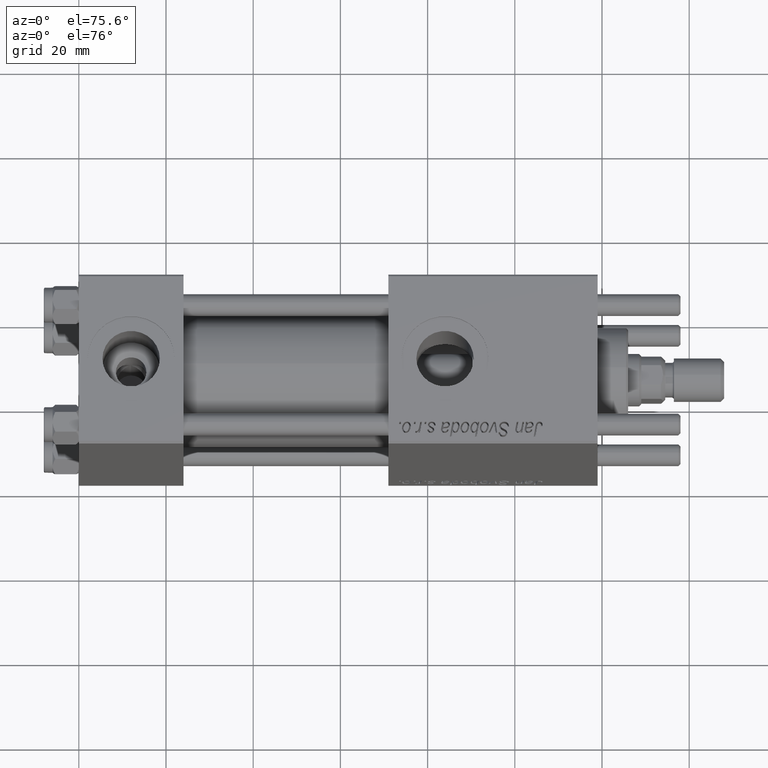
[diagram: clean part render]
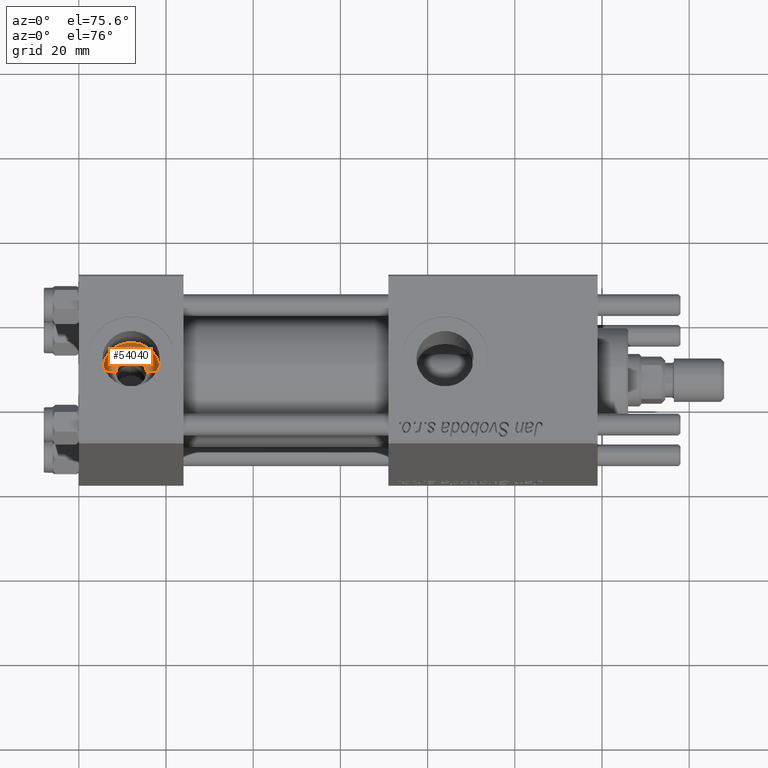
[diagram: same view with one face highlighted and labeled with its STEP entity id]
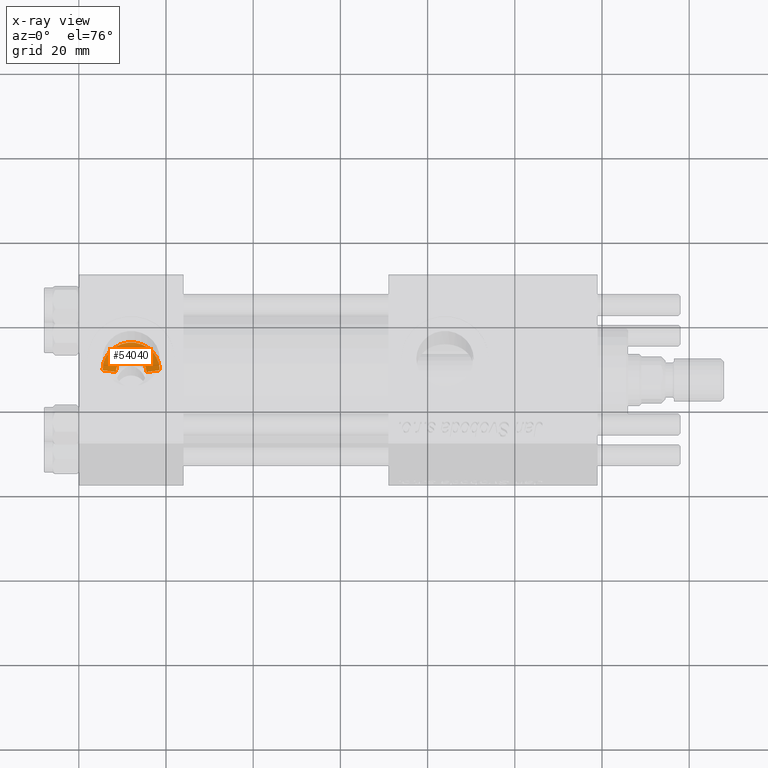
[diagram: x-ray of the same camera — body ghosted, the highlighted face saturated]
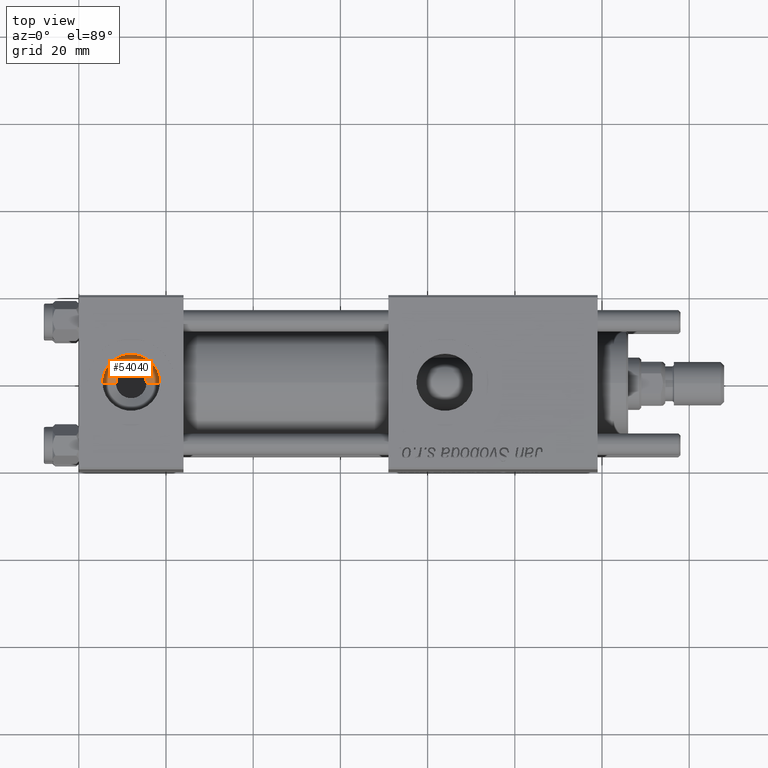
[diagram: same view with one face highlighted and labeled with its STEP entity id]
A machine part, auxiliary view. The second image highlights one B-rep face of the part: STEP entity #54040.
The next image is the same camera in x-ray: the body ghosted, the highlighted face saturated — about 0% of this face is hidden behind the body in this view.
A second angle (top view) of the same face is appended — the face is thin or edge-on in the first view.
In plain terms, the highlighted conical surface has half-angle 60.452 deg.
Its self-contained STEP definition (entity closure, byte-faithful):
#390 = FACE_OUTER_BOUND ( 'NONE', #12426, .T. ) ;
#1790 = VERTEX_POINT ( 'NONE', #18462 ) ;
#3896 = ORIENTED_EDGE ( 'NONE', *, *, #44309, .F. ) ;
#5114 = EDGE_CURVE ( 'NONE', #1790, #25802, #18000, .T. ) ;
#5894 = EDGE_CURVE ( 'NONE', #21256, #25802, #48548, .T. ) ;
#9058 = DIRECTION ( 'NONE',  ( 0.8699429503561852961, 0.000000000000000000, 0.4931523731318503412 ) ) ;
#11604 = EDGE_CURVE ( 'NONE', #1790, #17642, #27049, .T. ) ;
#11997 = DIRECTION ( 'NONE',  ( 1.000000000000000000, 0.000000000000000000, 0.000000000000000000 ) ) ;
#12426 = EDGE_LOOP ( 'NONE', ( #3896, #56459, #46616, #28625 ) ) ;
#13311 = VECTOR ( 'NONE', #9058, 1000.000000000000000 ) ;
#17438 = VECTOR ( 'NONE', #30568, 1000.000000000000000 ) ;
#17642 = VERTEX_POINT ( 'NONE', #46824 ) ;
#18000 = LINE ( 'NONE', #40925, #13311 ) ;
#18462 = CARTESIAN_POINT ( 'NONE',  ( 15.50000000000000000, 1.540743955509788682E-30, 7.419999999999996376 ) ) ;
#18487 = AXIS2_PLACEMENT_3D ( 'NONE', #52796, #51611, #11997 ) ;
#19471 = DIRECTION ( 'NONE',  ( 1.000000000000000000, 0.000000000000000000, 0.000000000000000000 ) ) ;
#21256 = VERTEX_POINT ( 'NONE', #37628 ) ;
#22054 = DIRECTION ( 'NONE',  ( -0.000000000000000000, -0.000000000000000000, -1.000000000000000000 ) ) ;
#24823 = AXIS2_PLACEMENT_3D ( 'NONE', #39614, #22054, #44079 ) ;
#25802 = VERTEX_POINT ( 'NONE', #51347 ) ;
#27049 = CIRCLE ( 'NONE', #18487, 3.499999999999999556 ) ;
#28625 = ORIENTED_EDGE ( 'NONE', *, *, #5894, .F. ) ;
#30568 = DIRECTION ( 'NONE',  ( -0.8699429503561852961, 1.065372849594507103E-16, 0.4931523731318503412 ) ) ;
#35156 = AXIS2_PLACEMENT_3D ( 'NONE', #37917, #37040, #19471 ) ;
#35898 = LINE ( 'NONE', #48701, #17438 ) ;
#37040 = DIRECTION ( 'NONE',  ( 0.000000000000000000, 0.000000000000000000, 1.000000000000000000 ) ) ;
#37628 = CARTESIAN_POINT ( 'NONE',  ( 5.420000000000000817, 8.058175938389596335E-16, 9.165987261146492315 ) ) ;
#37917 = CARTESIAN_POINT ( 'NONE',  ( 12.00000000000000000, 1.540743955509788682E-30, 7.419999999999996376 ) ) ;
#39614 = CARTESIAN_POINT ( 'NONE',  ( 12.00000000000000000, 1.540743955509788682E-30, 9.165987261146492315 ) ) ;
#40925 = CARTESIAN_POINT ( 'NONE',  ( 15.50000000000000000, 1.540743955509788682E-30, 7.419999999999996376 ) ) ;
#44079 = DIRECTION ( 'NONE',  ( 1.000000000000000000, 0.000000000000000000, 0.000000000000000000 ) ) ;
#44309 = EDGE_CURVE ( 'NONE', #17642, #21256, #35898, .T. ) ;
#46616 = ORIENTED_EDGE ( 'NONE', *, *, #5114, .T. ) ;
#46824 = CARTESIAN_POINT ( 'NONE',  ( 8.500000000000000000, 4.286263797015752865E-16, 7.419999999999996376 ) ) ;
#48548 = CIRCLE ( 'NONE', #24823, 6.579999999999999183 ) ;
#48701 = CARTESIAN_POINT ( 'NONE',  ( 8.500000000000000000, 4.286263797015751879E-16, 7.419999999999996376 ) ) ;
#51347 = CARTESIAN_POINT ( 'NONE',  ( 18.57999999999999829, 1.540743955509788682E-30, 9.165987261146492315 ) ) ;
#51611 = DIRECTION ( 'NONE',  ( 0.000000000000000000, 0.000000000000000000, 1.000000000000000000 ) ) ;
#52261 = CONICAL_SURFACE ( 'NONE', #35156, 3.499999999999999556, 1.055086625138361267 ) ;
#52796 = CARTESIAN_POINT ( 'NONE',  ( 12.00000000000000000, 1.540743955509788682E-30, 7.419999999999996376 ) ) ;
#54040 = ADVANCED_FACE ( 'NONE', ( #390 ), #52261, .F. ) ;
#56459 = ORIENTED_EDGE ( 'NONE', *, *, #11604, .F. ) ;